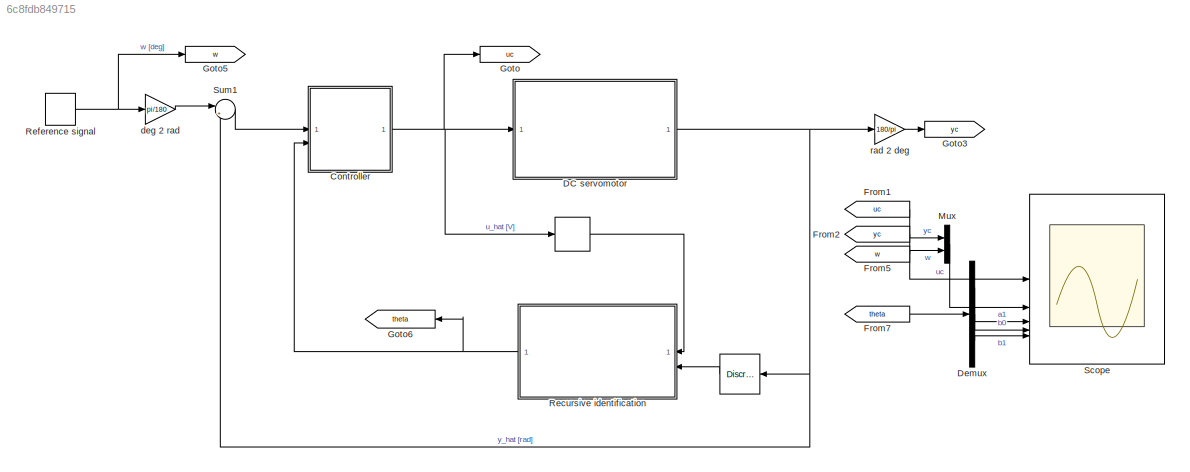
MODEL slx_6c8fdb849715
KIND model
CONFIG AbsTol = auto
CONFIG EnableMultiTasking = on
CONFIG FixedStep = 1e-3
CONFIG MaxStep = auto
CONFIG MinStep = auto
CONFIG RelTol = 1e-6
CONFIG SampleTimeConstraint = Unconstrained
CONFIG SolverName = ode5
CONFIG StartTime = 0.0
CONFIG StopTime = 100
BLOCK [Delay]  
  DelayLength = 1
  InitialCondition = 0
  InputPortMap = u0
BLOCK [DiscreteTransferFcn]   
  Denominator = [1 0]
  InputPortMap = u0
  Numerator = [1 -1]
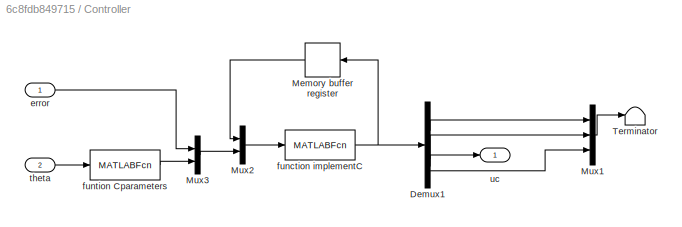
BLOCK [SubSystem] Controller
BLOCK [Demux] Controller/Demux1
BLOCK [Delay] Controller/Memory buffer register
  DelayLength = 1
  InitialCondition = [0 0 0 0]'
  InputPortMap = u0
  NameLocation = top
BLOCK [Mux] Controller/Mux1
  DisplayOption = bar
  Inputs = 3
BLOCK [Mux] Controller/Mux2
  DisplayOption = bar
  Inputs = 2
BLOCK [Mux] Controller/Mux3
  DisplayOption = bar
  Inputs = 2
BLOCK [Terminator] Controller/Terminator
BLOCK [Inport] Controller/error
BLOCK [MATLABFcn] Controller/function implementC
  MATLABFcn = implementC
  NameLocation = top
BLOCK [MATLABFcn] Controller/funtion Cparameters
  MATLABFcn = Cparameters
  NameLocation = top
BLOCK [Inport] Controller/theta
  Port = 2
BLOCK [Outport] Controller/uc
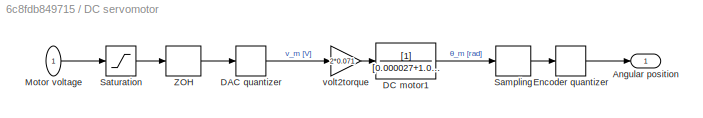
BLOCK [SubSystem] DC servomotor
BLOCK [Outport] DC servomotor/Angular position
BLOCK [Quantizer] DC servomotor/DAC quantizer
  QuantizationInterval = 10/2^13
BLOCK [TransferFcn] DC servomotor/DC motor1
  Denominator = [0.000027+1.08e-5  2.4299e-004  0]
BLOCK [Quantizer] DC servomotor/Encoder quantizer
  QuantizationInterval = 2*pi/3000
BLOCK [Inport] DC servomotor/Motor voltage 
BLOCK [ZeroOrderHold] DC servomotor/Sampling
  SampleTime = 0.001
BLOCK [Saturate] DC servomotor/Saturation
  LowerLimit = -3
  UpperLimit = 3
BLOCK [ZeroOrderHold] DC servomotor/ZOH
  SampleTime = 0.001
BLOCK [Gain] DC servomotor/volt2torque
  Gain = 2*0.071
BLOCK [Demux] Demux
  Outputs = 3
BLOCK [From] From1
  GotoTag = uc
BLOCK [From] From2
  GotoTag = yc
BLOCK [From] From5
  GotoTag = w
BLOCK [From] From7
  GotoTag = theta
BLOCK [Goto] Goto
  GotoTag = uc
BLOCK [Goto] Goto3
  GotoTag = yc
BLOCK [Goto] Goto5
  GotoTag = w
BLOCK [Goto] Goto6
  GotoTag = theta
  NameLocation = top
BLOCK [Mux] Mux
  DisplayOption = bar
  Inputs = 2
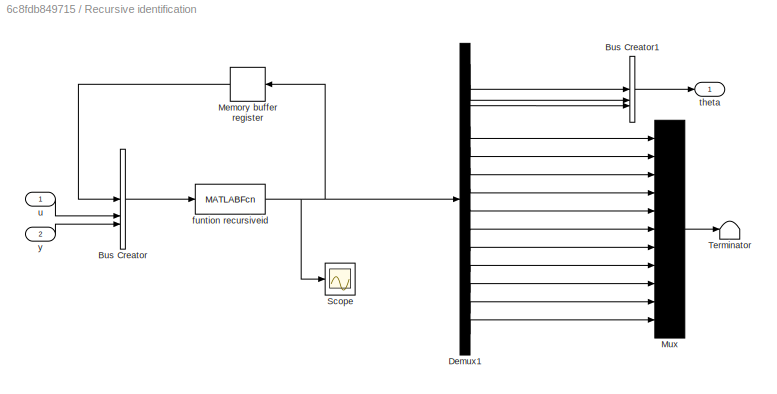
BLOCK [SubSystem] Recursive identification
BLOCK [BusCreator] Recursive identification/Bus Creator
  DisplayOption = bar
  InheritFromInputs = on
  Inputs = 3
BLOCK [BusCreator] Recursive identification/Bus Creator1
  DisplayOption = bar
  InheritFromInputs = on
  Inputs = 3
BLOCK [Demux] Recursive identification/Demux1
  Outputs = 14
BLOCK [Delay] Recursive identification/Memory buffer register
  DelayLength = 1
  InitialCondition = [-0.2 0.02 0.001 0 0 reshape(0.01*eye(3),9,1)']'
  InputPortMap = u0
  NameLocation = top
BLOCK [Mux] Recursive identification/Mux
  DisplayOption = bar
  Inputs = 11
BLOCK [Scope] Recursive identification/Scope
  ActiveDisplayYMaximum = 1
  ActiveDisplayYMinimum = -1
  Floating = off
  GraphicalSettings = {"Style":{"BackgroundColor":[0.12941176470588237,0.12941176470588237,0.12941176470588237],"AxesColor":[0.07058823529411765,0.07058823529411765,0.07058823529411765],"LabelsColor":[0.8509803921568627,0.8509803921568627,0.8509803921568627],"PreserveColors":false,"Visible":[true,true,true,true,true,true,true,true,true,true,true,true,true,true],"LineStyle":["-","-","-","-","-","-","-","-","-","-","-","...<+3830ch>
  MultipleDisplayCache = [{"MaxYLimMag":1,"MaxYLimReal":1,"MinYLimMag":0,"MinYLimReal":-1,"PlotAsMagnitudePhase":false,"ShowGrid":true,"ShowLegend":false,"Title":"%<SignalLabel>","YLabel":""}]
  NumInputPorts = 1
  ScopeFrameLocation = window
  WasSavedAsWebScope = on
  WindowPosition = [1.000000,41.000000,1920.000000,1017.000000,]
BLOCK [Terminator] Recursive identification/Terminator
BLOCK [MATLABFcn] Recursive identification/funtion recursiveid
  MATLABFcn = recursiveid
  NameLocation = top
BLOCK [Outport] Recursive identification/theta 
  NameLocation = top
  PortDimensions = 3
BLOCK [Inport] Recursive identification/u
BLOCK [Inport] Recursive identification/y
  Port = 2
BLOCK [DiscretePulseGenerator] Reference signal 
  Amplitude = 100
  Period = 5
  PulseType = Time based
  PulseWidth = 50
BLOCK [Scope] Scope
  ActiveDisplayString = 5
  ActiveDisplayYMaximum = 1.102580655761314
  ActiveDisplayYMinimum = -0.76531009768731917
  DataLogging = on
  DataLoggingDecimateData = on
  DataLoggingDecimation = 1
  DataLoggingSaveFormat = Structure With Time
  DataLoggingVariableName = sim_res
  Floating = off
  GraphicalSettings = {"Style":{"BackgroundColor":[0.12941176470588237,0.12941176470588237,0.12941176470588237],"AxesColor":[0.07058823529411765,0.07058823529411765,0.07058823529411765],"LabelsColor":[0.8509803921568627,0.8509803921568627,0.8509803921568627],"PreserveColors":false,"Visible":[true,true,true,true,true,true],"LineStyle":["-","-","-","-","-","-"],"LineWidth":[1.5,1.5,1.5,1.5,1.5,1.5],"BarWidth":[0.9,0.9,0....<+3736ch>
  LayoutDimensionsString = [5 1]
  MultipleDisplayCache = [{"MaxYLimMag":3.75,"MaxYLimReal":3.75,"MinYLimMag":0,"MinYLimReal":-3.75,"PlotAsMagnitudePhase":false,"ShowGrid":true,"ShowLegend":true,"Title":"%<SignalLabel>","YLabel":""},{"MaxYLimMag":106.93499999999999,"MaxYLimReal":107.63394976998366,"MinYLimMag":0,"MinYLimReal":-48.6784511987407,"PlotAsMagnitudePhase":false,"ShowGrid":true,"ShowLegend":true,"Title":"%<SignalLabel>","YLabel":""},{"MaxYLimMa...<+636ch>
  NumInputPorts = 5
  ScopeFrameLocation = window
  ShowLegend = on
  TimeAxisLabels = All
  TimeSpan = 10
  WasSavedAsWebScope = on
  WindowPosition = [1.000000,1.000000,1280.000000,697.000000,]
BLOCK [Sum] Sum1
  Inputs = |+-
  NameLocation = top
BLOCK [Gain] deg 2 rad
  Gain = pi/180
BLOCK [Gain] rad 2 deg
  Gain = 180/pi
LINE   :1 -> Recursive identification:2
LINE  :1 -> Recursive identification:1
LINE Controller/Demux1:1 -> Controller/Mux1:1
LINE Controller/Demux1:2 -> Controller/Mux1:2
LINE Controller/Demux1:3 -> Controller/uc:1
LINE Controller/Demux1:4 -> Controller/Mux1:3
LINE Controller/Memory buffer register:1 -> Controller/Mux2:1
LINE Controller/Mux1:1 -> Controller/Terminator:1
LINE Controller/Mux2:1 -> Controller/function implementC:1
LINE Controller/Mux3:1 -> Controller/Mux2:2
LINE Controller/error:1 -> Controller/Mux3:1
NET Controller/function implementC:1 -> Controller/Demux1:1, Controller/Memory buffer register:1
LINE Controller/funtion Cparameters:1 -> Controller/Mux3:2
LINE Controller/theta:1 -> Controller/funtion Cparameters:1
NET Controller:1 ->  :1, DC servomotor:1, Goto:1
LINE DC servomotor/DAC quantizer:1 -> DC servomotor/volt2torque:1
LINE DC servomotor/DC motor1:1 -> DC servomotor/Sampling:1
LINE DC servomotor/Encoder quantizer:1 -> DC servomotor/Angular position:1
LINE DC servomotor/Motor voltage :1 -> DC servomotor/Saturation:1
LINE DC servomotor/Sampling:1 -> DC servomotor/Encoder quantizer:1
LINE DC servomotor/Saturation:1 -> DC servomotor/ZOH:1
LINE DC servomotor/ZOH:1 -> DC servomotor/DAC quantizer:1
LINE DC servomotor/volt2torque:1 -> DC servomotor/DC motor1:1
NET DC servomotor:1 ->   :1, Sum1:2, rad 2 deg:1
LINE Demux:1 -> Scope:3
LINE Demux:2 -> Scope:4
LINE Demux:3 -> Scope:5
LINE From1:1 -> Scope:1
LINE From2:1 -> Mux:1
LINE From5:1 -> Mux:2
LINE From7:1 -> Demux:1
LINE Mux:1 -> Scope:2
LINE Recursive identification/Bus Creator1:1 -> Recursive identification/theta :1
LINE Recursive identification/Bus Creator:1 -> Recursive identification/funtion recursiveid:1
LINE Recursive identification/Demux1:1 -> Recursive identification/Bus Creator1:1
LINE Recursive identification/Demux1:10 -> Recursive identification/Mux:7
LINE Recursive identification/Demux1:11 -> Recursive identification/Mux:8
LINE Recursive identification/Demux1:12 -> Recursive identification/Mux:9
LINE Recursive identification/Demux1:13 -> Recursive identification/Mux:10
LINE Recursive identification/Demux1:14 -> Recursive identification/Mux:11
LINE Recursive identification/Demux1:2 -> Recursive identification/Bus Creator1:2
LINE Recursive identification/Demux1:3 -> Recursive identification/Bus Creator1:3
LINE Recursive identification/Demux1:4 -> Recursive identification/Mux:1
LINE Recursive identification/Demux1:5 -> Recursive identification/Mux:2
LINE Recursive identification/Demux1:6 -> Recursive identification/Mux:3
LINE Recursive identification/Demux1:7 -> Recursive identification/Mux:4
LINE Recursive identification/Demux1:8 -> Recursive identification/Mux:5
LINE Recursive identification/Demux1:9 -> Recursive identification/Mux:6
LINE Recursive identification/Memory buffer register:1 -> Recursive identification/Bus Creator:1
LINE Recursive identification/Mux:1 -> Recursive identification/Terminator:1
NET Recursive identification/funtion recursiveid:1 -> Recursive identification/Demux1:1, Recursive identification/Memory buffer register:1, Recursive identification/Scope:1
LINE Recursive identification/u:1 -> Recursive identification/Bus Creator:2
LINE Recursive identification/y:1 -> Recursive identification/Bus Creator:3
NET Recursive identification:1 -> Controller:2, Goto6:1
NET Reference signal :1 -> Goto5:1, deg 2 rad:1
LINE Sum1:1 -> Controller:1
LINE deg 2 rad:1 -> Sum1:1
LINE rad 2 deg:1 -> Goto3:1
note: NET lines group one-source signal fan-out (src -> all destinations, sorted); 1:1 wires keep LINE
